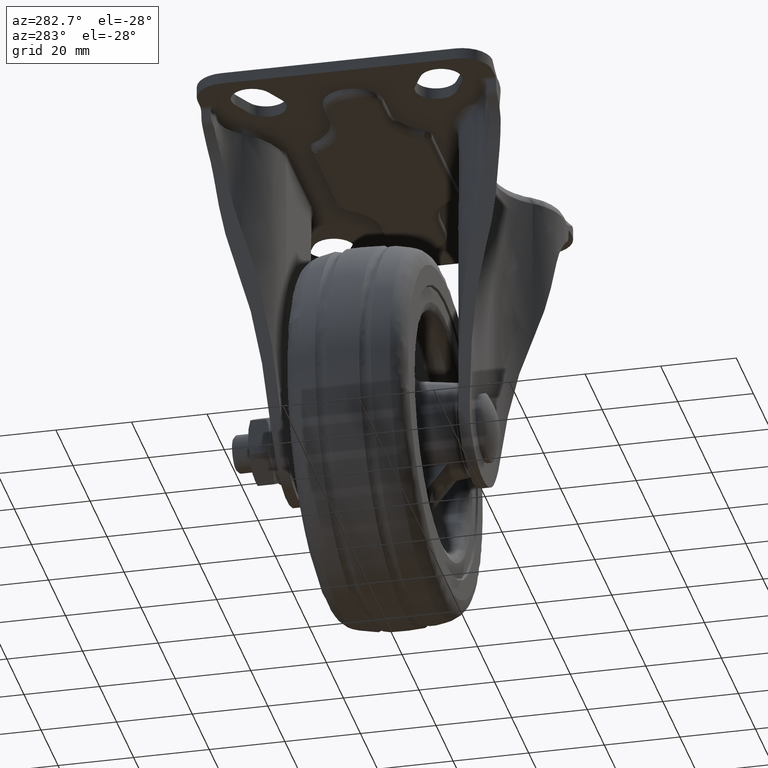
[diagram: clean part render]
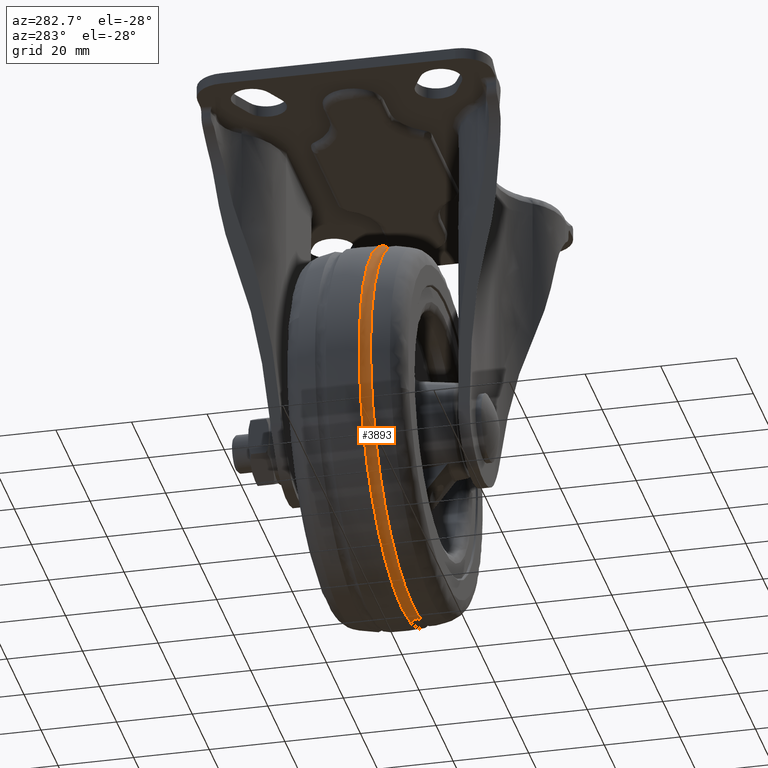
[diagram: same view with one face highlighted and labeled with its STEP entity id]
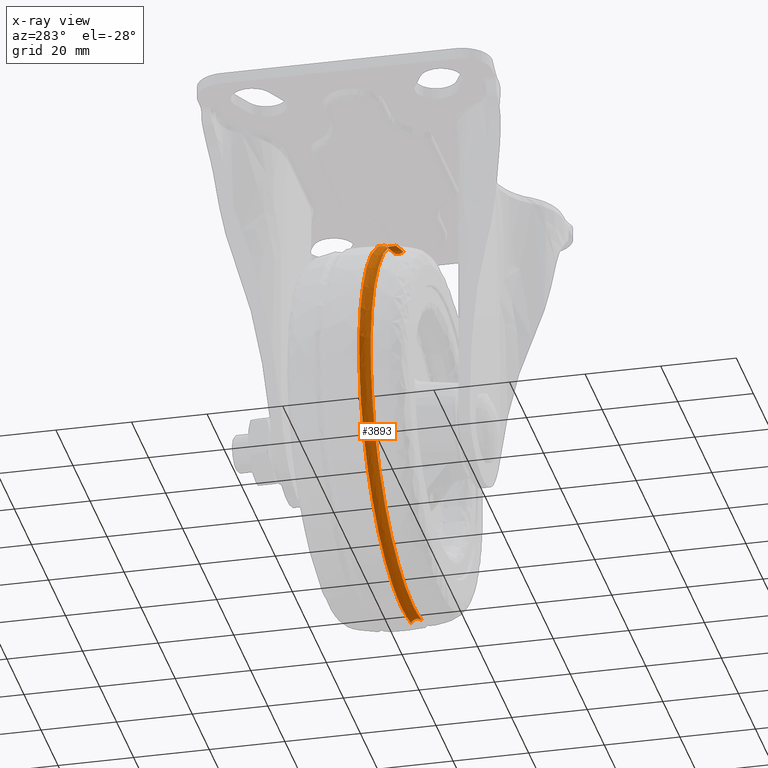
[diagram: x-ray of the same camera — body ghosted, the highlighted face saturated]
A machine part, auxiliary view. The second image highlights one B-rep face of the part: STEP entity #3893.
The next image is the same camera in x-ray: the body ghosted, the highlighted face saturated — about 1% of this face is hidden behind the body in this view.
In plain terms, the highlighted face is a freeform B-spline surface patch.
Its self-contained STEP definition (entity closure, byte-faithful):
#3628=CARTESIAN_POINT('',(0.0,-4.408304624396830,-49.805289381134230));
#3629=VERTEX_POINT('',#3628);
#3643=CARTESIAN_POINT('',(-11.169871919124040,-4.408304680235169,48.536608600202143));
#3644=VERTEX_POINT('',#3643);
#3645=CARTESIAN_POINT('',(-11.169871919124040,-4.408304680235169,48.536608600202143));
#3646=CARTESIAN_POINT('',(-13.565133215963250,-4.408304679475629,47.985527269186854));
#3647=CARTESIAN_POINT('',(-17.730453147396851,-4.408304677959861,46.695795388714757));
#3648=CARTESIAN_POINT('',(-22.977626044422820,-4.408304675585793,44.281782545030190));
#3649=CARTESIAN_POINT('',(-28.118403882621770,-4.408304672876011,41.264110337374753));
#3650=CARTESIAN_POINT('',(-32.938137607708377,-4.408304669829533,37.575366894929260));
#3651=CARTESIAN_POINT('',(-37.325023943658323,-4.408304666412549,33.123146733413869));
#3652=CARTESIAN_POINT('',(-40.380548224559597,-4.408304663587082,29.265102088108140));
#3653=CARTESIAN_POINT('',(-43.343140333429183,-4.408304660397301,24.759113663476580));
#3654=CARTESIAN_POINT('',(-45.779040547628107,-4.408304657116524,19.936223840545502));
#3655=CARTESIAN_POINT('',(-47.797047294041363,-4.408304653448606,14.325531406562011));
#3656=CARTESIAN_POINT('',(-49.214754312863867,-4.408304649781058,8.531214042423279));
#3657=CARTESIAN_POINT('',(-49.988105419467253,-4.408304645482297,1.464028925895386));
#3658=CARTESIAN_POINT('',(-49.658397867448173,-4.408304641471493,-5.452493478325287));
#3659=CARTESIAN_POINT('',(-48.394544993518522,-4.408304637647934,-12.342149472906380));
#3660=CARTESIAN_POINT('',(-46.488326950513049,-4.408304634486512,-18.302357868020060));
#3661=CARTESIAN_POINT('',(-43.668331921390262,-4.408304631530704,-24.197003912251660));
#3662=CARTESIAN_POINT('',(-40.266964059216463,-4.408304628996858,-29.553337707721489));
#3663=CARTESIAN_POINT('',(-36.496238860468509,-4.408304627029636,-34.059731021951571));
#3664=CARTESIAN_POINT('',(-32.026400349715693,-4.408304625356371,-38.285350540463547));
#3665=CARTESIAN_POINT('',(-27.478019062981641,-4.408304624175202,-41.696194788385213));
#3666=CARTESIAN_POINT('',(-22.131310467371058,-4.408304623353241,-44.744459130828929));
#3667=CARTESIAN_POINT('',(-16.465066949480860,-4.408304622967517,-47.149735575984337));
#3668=CARTESIAN_POINT('',(-9.074944043859260,-4.408304623091294,-49.221593531961062));
#3669=CARTESIAN_POINT('',(-3.403203646664984,-4.408304623778022,-49.805784947143607));
#3670=CARTESIAN_POINT('',(0.0,-4.408304624396830,-49.805289381134230));
#3671=B_SPLINE_CURVE_WITH_KNOTS('',3,(#3645,#3646,#3647,#3648,#3649,#3650,#3651,#3652,#3653,#3654,#3655,#3656,#3657,#3658,#3659,#3660,#3661,#3662,#3663,#3664,#3665,#3666,#3667,#3668,#3669,#3670),.UNSPECIFIED.,.F.,.U.,(4,1,1,1,1,1,1,1,1,1,1,1,1,1,1,1,1,1,1,1,1,1,1,4),(0.000000046262556,7.373501980732698,13.045531927421541,17.299485806328999,25.240268614499769,31.195854040431119,36.017043700111763,39.987401422913379,47.360986403413619,52.182203945253072,57.854155296191763,65.227712720139849,73.451945684319057,78.556726077035052,86.213909387793350,92.169526474773591,98.125087276588488,105.215063496357800,109.752652537173700,116.559039980385290,122.230991830155700,128.186577676904590,134.992956819918310,145.202459613924110),.UNSPECIFIED.);
#3672=EDGE_CURVE('',#3644,#3629,#3671,.T.);
#3720=CARTESIAN_POINT('',(11.169871932717040,-4.408304546980828,-48.536592659268017));
#3721=VERTEX_POINT('',#3720);
#3751=CARTESIAN_POINT('',(0.0,-4.408304624396830,-49.805289381134230));
#3752=CARTESIAN_POINT('',(5.656986535205598,-4.408304584300692,-49.805289357687528));
#3753=CARTESIAN_POINT('',(11.169871932717040,-4.408304546980827,-48.536592659268024));
#3761=(BOUNDED_CURVE()B_SPLINE_CURVE(2,(#3751,#3752,#3753),.UNSPECIFIED.,.F.,.U.)B_SPLINE_CURVE_WITH_KNOTS((3,3),(0.0,0.038352912369130),.UNSPECIFIED.)CURVE()GEOMETRIC_REPRESENTATION_ITEM()RATIONAL_B_SPLINE_CURVE((1.0,0.955066768181341,0.923920098781905))REPRESENTATION_ITEM(''));
#3762=EDGE_CURVE('',#3629,#3721,#3761,.T.);
#3770=CARTESIAN_POINT('',(-9.770452020158308,-7.457531805358605,48.637342125394177));
#3771=CARTESIAN_POINT('',(-10.442042364210376,-7.457531805358606,48.482787046706463));
#3772=CARTESIAN_POINT('',(-59.447914121204775,-7.457531805358604,37.204920364074837));
#3773=CARTESIAN_POINT('',(-48.326413242639823,-7.457531805358605,-11.121492878564970));
#3774=CARTESIAN_POINT('',(-37.204912364074850,-7.457531805358604,-59.447906121204795));
#3775=CARTESIAN_POINT('',(11.800959393152123,-7.457531805358605,-48.170039438519666));
#3776=CARTESIAN_POINT('',(12.472549737431393,-7.457531805358604,-48.015484359779670));
#3777=CARTESIAN_POINT('',(-9.601596727377656,-6.836480927849339,47.796780063693291));
#3778=CARTESIAN_POINT('',(-10.261580486192971,-6.836480927849338,47.644896042906346));
#3779=CARTESIAN_POINT('',(-58.420521025836791,-6.836480927849340,36.561936154423869));
#3780=CARTESIAN_POINT('',(-47.491224590130351,-6.836480927849340,-10.929288435706464));
#3781=CARTESIAN_POINT('',(-36.561928154423882,-6.836480927849340,-58.420513025836811));
#3782=CARTESIAN_POINT('',(11.597012385448489,-6.836480927849339,-47.337553137301711));
#3783=CARTESIAN_POINT('',(12.256996144487079,-6.836480927849339,-47.185669116463394));
#3784=CARTESIAN_POINT('',(-9.626432092461162,-5.785625111829236,47.920410572005537));
#3785=CARTESIAN_POINT('',(-10.288122956674114,-5.785625111829233,47.768133689987906));
#3786=CARTESIAN_POINT('',(-58.571630784894658,-5.785625111829234,36.656506761756567));
#3787=CARTESIAN_POINT('',(-47.614064773325630,-5.785625111829234,-10.957558011569050));
#3788=CARTESIAN_POINT('',(-36.656498761756588,-5.785625111829234,-58.571622784894686));
#3789=CARTESIAN_POINT('',(11.627009066693113,-5.785625111829237,-47.459995856610632));
#3790=CARTESIAN_POINT('',(12.288699931129917,-5.785625111829235,-47.307718974541494));
#3791=CARTESIAN_POINT('',(-9.651186118618817,-4.738210979996194,48.043636174945370));
#3792=CARTESIAN_POINT('',(-10.314578497245812,-4.738210979996195,47.890967718366767));
#3793=CARTESIAN_POINT('',(-58.722245640598203,-4.738210979996193,36.750767638526007));
#3794=CARTESIAN_POINT('',(-47.736502639562119,-4.738210979996194,-10.985735001036113));
#3795=CARTESIAN_POINT('',(-36.750759638526013,-4.738210979996193,-58.722237640598244));
#3796=CARTESIAN_POINT('',(11.656907505056123,-4.738210979996194,-47.582037560704613));
#3797=CARTESIAN_POINT('',(12.320299883907547,-4.738210979996195,-47.429369104074361));
#3798=CARTESIAN_POINT('',(-9.843331742724056,-4.335979916248250,49.000137563116276));
#3799=CARTESIAN_POINT('',(-10.519931611192325,-4.335979916248250,48.844429627709900));
#3800=CARTESIAN_POINT('',(-59.891347800560332,-4.335979916248250,37.482439120175641));
#3801=CARTESIAN_POINT('',(-48.686889460367986,-4.335979916248250,-11.204450340192361));
#3802=CARTESIAN_POINT('',(-37.482431120175626,-4.335979916248250,-59.891339800560367));
#3803=CARTESIAN_POINT('',(11.888985069426687,-4.335979916248250,-48.529349292972164));
#3804=CARTESIAN_POINT('',(12.565584938123850,-4.335979916248250,-48.373641357513108));
#3812=(BOUNDED_SURFACE()B_SPLINE_SURFACE(2,2,((#3770,#3777,#3784,#3791,#3798),(#3771,#3778,#3785,#3792,#3799),(#3772,#3779,#3786,#3793,#3800),(#3773,#3780,#3787,#3794,#3801),(#3774,#3781,#3788,#3795,#3802),(#3775,#3782,#3789,#3796,#3803),(#3776,#3783,#3790,#3797,#3804)),.UNSPECIFIED.,.F.,.F.,.U.)B_SPLINE_SURFACE_WITH_KNOTS((3,1,2,1,3),(3,2,3),(0.0,1.655512678759937,84.431146629536258,167.206780580312600,168.862293259642510),(0.0,1.959921962721098,3.914407334616195),.UNSPECIFIED.)GEOMETRIC_REPRESENTATION_ITEM()RATIONAL_B_SPLINE_SURFACE(((0.975667553709526,0.856446301300254,1.011715728750729,0.856877000257096,0.975008254556918),(0.970018409347472,0.851487451560916,1.005857864375365,0.851915656757897,0.969362927556706),(0.681912046839075,0.598586114816405,0.707106781186548,0.598887138260420,0.681451250502326),(0.964369264985417,0.846528601821579,1.0,0.846954313258697,0.963717600556494),(0.681912046839075,0.598586114816405,0.707106781186548,0.598887138260420,0.681451250502326),(0.970018409349417,0.851487451562624,1.005857864377381,0.851915656759605,0.969362927558650),(0.975667553713416,0.856446301303669,1.011715728754763,0.856877000260513,0.975008254560805)))REPRESENTATION_ITEM('')SURFACE());
#3813=ORIENTED_EDGE('',*,*,#3672,.T.);
#3814=ORIENTED_EDGE('',*,*,#3762,.T.);
#3815=CARTESIAN_POINT('',(11.091680483020300,-7.351237768992199,-48.196826260034811));
#3816=VERTEX_POINT('',#3815);
#3817=CARTESIAN_POINT('',(11.091680483020300,-7.351237768992199,-48.196826260034811));
#3818=CARTESIAN_POINT('',(11.058079712543631,-7.219555773455763,-48.050820362345867));
#3819=CARTESIAN_POINT('',(11.011293131708999,-6.962739552383461,-47.847517978566387));
#3820=CARTESIAN_POINT('',(10.963908719341729,-6.477967332079370,-47.641617829053168));
#3821=CARTESIAN_POINT('',(10.948478468405099,-5.986444030679197,-47.574568543911809));
#3822=CARTESIAN_POINT('',(10.965852849426980,-5.516981184559139,-47.650065684618319));
#3823=CARTESIAN_POINT('',(11.003094686671499,-5.112827424979164,-47.811893160593847));
#3824=CARTESIAN_POINT('',(11.064791807416549,-4.724607528998942,-48.079986521841477));
#3825=CARTESIAN_POINT('',(11.130301629433770,-4.501337321949253,-48.364647267239640));
#3826=CARTESIAN_POINT('',(11.169871932717040,-4.408304546980828,-48.536592659268017));
#3827=B_SPLINE_CURVE_WITH_KNOTS('',3,(#3817,#3818,#3819,#3820,#3821,#3822,#3823,#3824,#3825,#3826),.UNSPECIFIED.,.F.,.U.,(4,1,1,1,1,1,1,4),(0.000000303074706,0.598365292263316,0.979152742210624,1.577571162448131,2.067041215979253,2.393435240613430,2.883042533351852,3.481407286348165),.UNSPECIFIED.);
#3828=EDGE_CURVE('',#3816,#3721,#3827,.T.);
#3829=ORIENTED_EDGE('',*,*,#3828,.F.);
#3830=CARTESIAN_POINT('',(0.0,-7.351239303572061,-49.456640410581812));
#3831=VERTEX_POINT('',#3830);
#3832=CARTESIAN_POINT('',(0.0,-7.351239303572061,-49.456640410581812));
#3833=CARTESIAN_POINT('',(5.617386437252524,-7.351238536282306,-49.456641065972313));
#3834=CARTESIAN_POINT('',(11.091680483020298,-7.351237768992199,-48.196826260034811));
#3842=(BOUNDED_CURVE()B_SPLINE_CURVE(2,(#3832,#3833,#3834),.UNSPECIFIED.,.F.,.U.)B_SPLINE_CURVE_WITH_KNOTS((3,3),(0.0,0.038352911863804),.UNSPECIFIED.)CURVE()GEOMETRIC_REPRESENTATION_ITEM()RATIONAL_B_SPLINE_CURVE((1.0,0.955066768773367,0.923920099602662))REPRESENTATION_ITEM(''));
#3843=EDGE_CURVE('',#3831,#3816,#3842,.T.);
#3844=ORIENTED_EDGE('',*,*,#3843,.F.);
#3845=CARTESIAN_POINT('',(-11.091680483019490,-7.351237768973823,48.196842260031303));
#3846=VERTEX_POINT('',#3845);
#3847=CARTESIAN_POINT('',(-11.091680483019490,-7.351237768973823,48.196842260031303));
#3848=CARTESIAN_POINT('',(-12.921258127043110,-7.351237772281817,47.775820826052900));
#3849=CARTESIAN_POINT('',(-16.983861130453889,-7.351237783460936,46.593833453359913));
#3850=CARTESIAN_POINT('',(-22.159568966550140,-7.351237809360788,44.336591953458417));
#3851=CARTESIAN_POINT('',(-27.525175483500171,-7.351237848138254,41.227743761516187));
#3852=CARTESIAN_POINT('',(-32.124284039570682,-7.351237893365965,37.790203575784417));
#3853=CARTESIAN_POINT('',(-36.095775795473863,-7.351237946457161,33.917102718684909));
#3854=CARTESIAN_POINT('',(-39.257493059067052,-7.351237998651727,30.193769387070599));
#3855=CARTESIAN_POINT('',(-42.610517932119748,-7.351238066709342,25.426250306063391));
#3856=CARTESIAN_POINT('',(-45.488452075928841,-7.351238148799944,19.808174566469251));
#3857=CARTESIAN_POINT('',(-47.351571386366302,-7.351238228101964,14.485116593776800));
#3858=CARTESIAN_POINT('',(-48.566288421413461,-7.351238299355902,9.754436975032160));
#3859=CARTESIAN_POINT('',(-49.261141711280132,-7.351238367339596,5.293609960430963));
#3860=CARTESIAN_POINT('',(-49.524938768033991,-7.351238445474069,0.227439925491816));
#3861=CARTESIAN_POINT('',(-49.337723136061477,-7.351238520118349,-4.562577901635667));
#3862=CARTESIAN_POINT('',(-48.661251158795920,-7.351238593476906,-9.214060174312465));
#3863=CARTESIAN_POINT('',(-47.499516995660102,-7.351238670632601,-14.055211811320721));
#3864=CARTESIAN_POINT('',(-45.904205166127582,-7.351238745159669,-18.677697145159129));
#3865=CARTESIAN_POINT('',(-43.283390910454031,-7.351238835402530,-24.196672020333310));
#3866=CARTESIAN_POINT('',(-40.039505613534992,-7.351238919874758,-29.272930066501861));
#3867=CARTESIAN_POINT('',(-35.922557577736733,-7.351239003022446,-34.164651946347583));
#3868=CARTESIAN_POINT('',(-31.112578055860592,-7.351239081247985,-38.660398897957833));
#3869=CARTESIAN_POINT('',(-25.320715076378960,-7.351239154162004,-42.702272174371863));
#3870=CARTESIAN_POINT('',(-19.666206268385530,-7.351239207410267,-45.492164849703748));
#3871=CARTESIAN_POINT('',(-14.189394657311119,-7.351239247821709,-47.474868886431047));
#3872=CARTESIAN_POINT('',(-7.978913069814613,-7.351239282550862,-49.007916002663073));
#3873=CARTESIAN_POINT('',(-2.909989601520620,-7.351239298448016,-49.456917936671971));
#3874=CARTESIAN_POINT('',(0.0,-7.351239303572061,-49.456640410581812));
#3875=B_SPLINE_CURVE_WITH_KNOTS('',3,(#3847,#3848,#3849,#3850,#3851,#3852,#3853,#3854,#3855,#3856,#3857,#3858,#3859,#3860,#3861,#3862,#3863,#3864,#3865,#3866,#3867,#3868,#3869,#3870,#3871,#3872,#3873,#3874),.UNSPECIFIED.,.F.,.U.,(4,1,1,1,1,1,1,1,1,1,1,1,1,1,1,1,1,1,1,1,1,1,1,1,1,4),(0.000000050107815,5.632199992441088,12.672589152925610,16.896771077698151,24.218735694875889,29.851016533465010,33.512003686553058,38.862643847538280,47.311057963375852,52.380145305052977,55.759446808206953,61.954965033929881,65.897524757206213,70.966457315663590,76.317145305438245,79.978175256754895,85.892008423422993,90.961088591141959,98.283026593958567,103.915306088493490,110.110818340337300,117.996014076991700,125.036359287971000,128.978948185682100,135.456078182151290,144.186009968732290),.UNSPECIFIED.);
#3876=EDGE_CURVE('',#3846,#3831,#3875,.T.);
#3877=ORIENTED_EDGE('',*,*,#3876,.F.);
#3878=CARTESIAN_POINT('',(-11.091680483019490,-7.351237768973823,48.196842260031303));
#3879=CARTESIAN_POINT('',(-11.058078475434611,-7.219558466000229,48.050830986718871));
#3880=CARTESIAN_POINT('',(-11.011294921003280,-6.962735650241577,47.847541753611686));
#3881=CARTESIAN_POINT('',(-10.967195583664900,-6.511400661498884,47.655916286548411));
#3882=CARTESIAN_POINT('',(-10.947088449411210,-5.988236925001376,47.568544474945867));
#3883=CARTESIAN_POINT('',(-10.967325292315410,-5.441192017670595,47.656479911279888));
#3884=CARTESIAN_POINT('',(-11.022271643490569,-4.971552814660338,47.895239059136017));
#3885=CARTESIAN_POINT('',(-11.087266653317091,-4.642671960651032,48.177662783917143));
#3886=CARTESIAN_POINT('',(-11.141102225092530,-4.476011088510790,48.411595246542177));
#3887=CARTESIAN_POINT('',(-11.169871919124040,-4.408304680235169,48.536608600202143));
#3888=B_SPLINE_CURVE_WITH_KNOTS('',3,(#3878,#3879,#3880,#3881,#3882,#3883,#3884,#3885,#3886,#3887),.UNSPECIFIED.,.F.,.U.,(4,1,1,1,1,1,1,4),(0.000000303104346,0.598365261347150,0.979152691629279,1.468781841879836,2.175870985490403,2.611038370423860,3.046247015564938,3.481407106280401),.UNSPECIFIED.);
#3889=EDGE_CURVE('',#3846,#3644,#3888,.T.);
#3890=ORIENTED_EDGE('',*,*,#3889,.T.);
#3891=EDGE_LOOP('',(#3813,#3814,#3829,#3844,#3877,#3890));
#3892=FACE_OUTER_BOUND('',#3891,.T.);
#3893=ADVANCED_FACE('',(#3892),#3812,.F.);